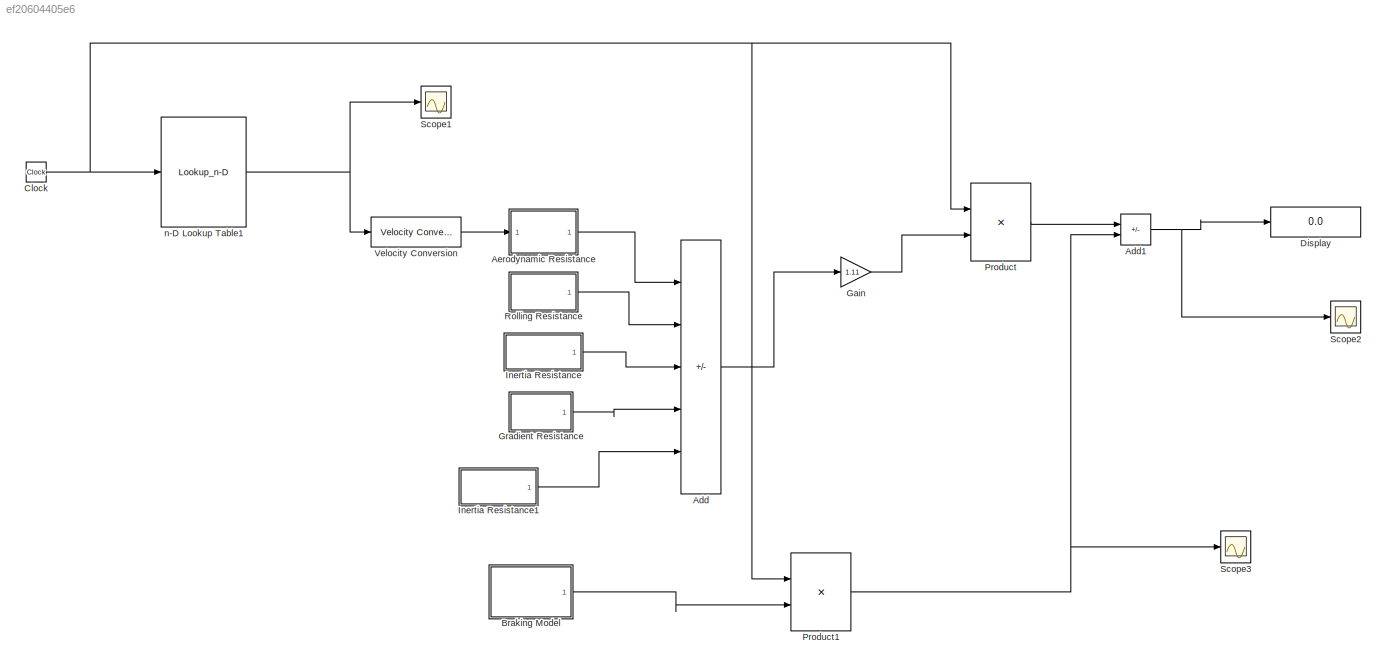
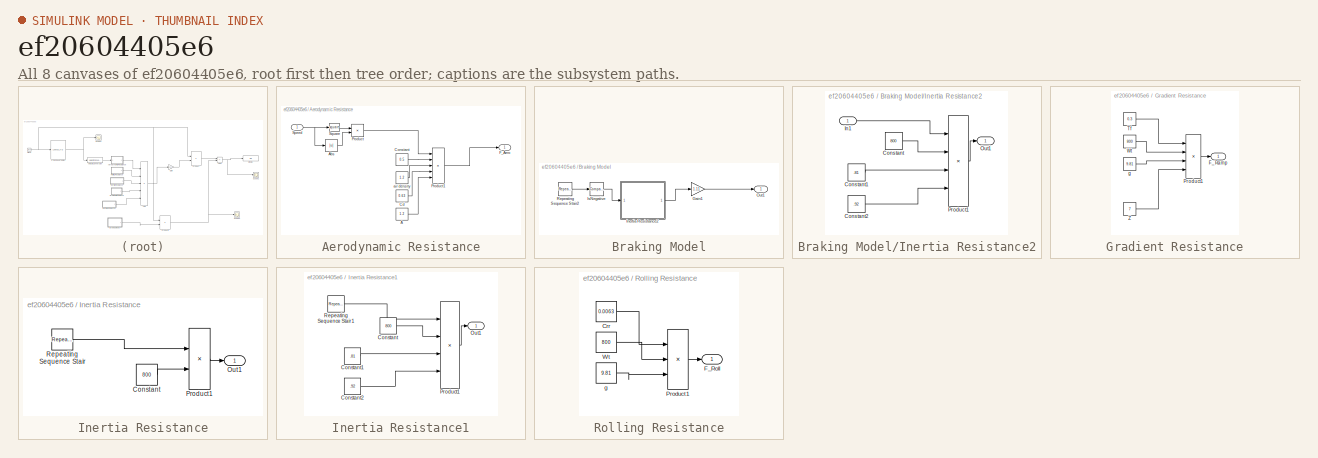
[diagram: thumbnail index - all 8 canvases of the model, root first then tree order]
MODEL slx_ef20604405e6
KIND model
CONFIG AbsTol = auto
CONFIG EnableMultiTasking = off
CONFIG FixedStep = auto
CONFIG MaxStep = auto
CONFIG MinStep = auto
CONFIG RelTol = 1e-3
CONFIG SampleTimeConstraint = Unconstrained
CONFIG Solver = VariableStepDiscrete
CONFIG SolverName = VariableStepDiscrete
CONFIG StartTime = 0.0
CONFIG StopTime = 1180
WORKSPACE source: mxarray member
WORKSPACE acceleration = [0 1.04 0 -0.83 0 0.69 0.79 0 -0.81 0 0.69 0.51 ... (90 elements, 90x1)]
BLOCK [Sum] Add
  IconShape = rectangular
  Inputs = ++++-
  Ports = [5, 1]
BLOCK [Sum] Add1
  IconShape = rectangular
  Inputs = +-
  Ports = [2, 1]
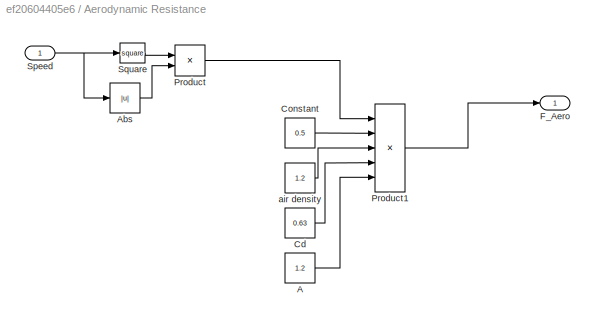
BLOCK [SubSystem] Aerodynamic Resistance
  Ports = [1, 1]
  RequestExecContextInheritance = off
BLOCK [Constant] Aerodynamic Resistance/A
  Value = 1.2
BLOCK [Abs] Aerodynamic Resistance/Abs
  SaturateOnIntegerOverflow = off
BLOCK [Constant] Aerodynamic Resistance/Cd
  Value = 0.63
BLOCK [Constant] Aerodynamic Resistance/Constant
  Value = 0.5
BLOCK [Outport] Aerodynamic Resistance/F_Aero
BLOCK [Product] Aerodynamic Resistance/Product
  Ports = [2, 1]
BLOCK [Product] Aerodynamic Resistance/Product1
  Inputs = 5
  Ports = [5, 1]
BLOCK [Inport] Aerodynamic Resistance/Speed
BLOCK [Math] Aerodynamic Resistance/Square
  Operator = square
  Ports = [1, 1]
BLOCK [Constant] Aerodynamic Resistance/air density
  Value = 1.2
BLOCK [SubSystem] Braking Model
  Ports = [0, 1]
  RequestExecContextInheritance = off
BLOCK [Gain] Braking Model/Gain1
  Gain = 1.11
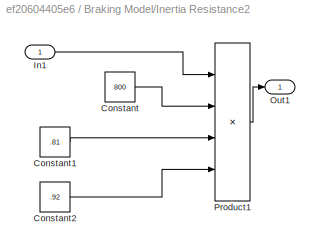
BLOCK [SubSystem] Braking Model/Inertia Resistance2
  Ports = [1, 1]
  RequestExecContextInheritance = off
BLOCK [Constant] Braking Model/Inertia Resistance2/Constant
  Value = 800
BLOCK [Constant] Braking Model/Inertia Resistance2/Constant1
  Value = .81
BLOCK [Constant] Braking Model/Inertia Resistance2/Constant2
  Value = .92
BLOCK [Inport] Braking Model/Inertia Resistance2/In1
BLOCK [Outport] Braking Model/Inertia Resistance2/Out1
BLOCK [Product] Braking Model/Inertia Resistance2/Product1
  Inputs = 4
  Ports = [4, 1]
BLOCK [Reference] Braking Model/IsNegative  REF=simulink/Logic and Bit
Operations/Compare
To Zero
  Ports = [1, 1]
  SourceBlock = simulink/Logic and Bit\nOperations/Compare\nTo Zero
  SourceProductBaseCode = SL
  SourceType = Compare To Zero
BLOCK [Outport] Braking Model/Out1
BLOCK [Reference] Braking Model/Repeating Sequence Stair2  REF=simulink/Sources/Repeating
Sequence
Stair
  Ports = [0, 1]
  SourceBlock = simulink/Sources/Repeating\nSequence\nStair
  SourceProductBaseCode = SL
  SourceType = Repeating Sequence Stair
BLOCK [Clock] Clock
BLOCK [Display] Display
  Decimation = 1
  Ports = [1]
BLOCK [Gain] Gain
  Gain = 1.11
BLOCK [SubSystem] Gradient Resistance
  Ports = [0, 1]
  RequestExecContextInheritance = off
BLOCK [Outport] Gradient Resistance/F_Ramp
BLOCK [Product] Gradient Resistance/Product1
  Inputs = 4
  Ports = [4, 1]
BLOCK [Constant] Gradient Resistance/Tf
  SampleTime = -1
  Value = 0.3
  VectorParams1D = off
BLOCK [Constant] Gradient Resistance/Wt
  SampleTime = -1
  Value = 800
  VectorParams1D = off
BLOCK [Constant] Gradient Resistance/Z
  SampleTime = -1
  Value = 7
  VectorParams1D = off
BLOCK [Constant] Gradient Resistance/g
  SampleTime = -1
  Value = 9.81
  VectorParams1D = off
BLOCK [SubSystem] Inertia Resistance
  Ports = [0, 1]
  RequestExecContextInheritance = off
BLOCK [Constant] Inertia Resistance/Constant
  Value = 800
BLOCK [Outport] Inertia Resistance/Out1
BLOCK [Product] Inertia Resistance/Product1
  Ports = [2, 1]
BLOCK [Reference] Inertia Resistance/Repeating Sequence Stair  REF=simulink/Sources/Repeating
Sequence
Stair
  Ports = [0, 1]
  SourceBlock = simulink/Sources/Repeating\nSequence\nStair
  SourceProductBaseCode = SL
  SourceType = Repeating Sequence Stair
BLOCK [SubSystem] Inertia Resistance1
  Ports = [0, 1]
  RequestExecContextInheritance = off
BLOCK [Constant] Inertia Resistance1/Constant
  Value = 800
BLOCK [Constant] Inertia Resistance1/Constant1
  Value = .81
BLOCK [Constant] Inertia Resistance1/Constant2
  Value = .92
BLOCK [Outport] Inertia Resistance1/Out1
BLOCK [Product] Inertia Resistance1/Product1
  Inputs = 4
  Ports = [4, 1]
BLOCK [Reference] Inertia Resistance1/Repeating Sequence Stair1  REF=simulink/Sources/Repeating
Sequence
Stair
  Ports = [0, 1]
  SourceBlock = simulink/Sources/Repeating\nSequence\nStair
  SourceProductBaseCode = SL
  SourceType = Repeating Sequence Stair
BLOCK [Product] Product
  Ports = [2, 1]
BLOCK [Product] Product1
  Ports = [2, 1]
BLOCK [SubSystem] Rolling Resistance
  Ports = [0, 1]
  RequestExecContextInheritance = off
BLOCK [Constant] Rolling Resistance/Crr
  Value = 0.0063
BLOCK [Outport] Rolling Resistance/F_Roll
BLOCK [Product] Rolling Resistance/Product1
  Inputs = 3
  Ports = [3, 1]
BLOCK [Constant] Rolling Resistance/Wt
  Value = 800
BLOCK [Constant] Rolling Resistance/g
  Value = 9.81
BLOCK [Scope] Scope1
  Floating = off
  NumInputPorts = 1
  Ports = [1]
  ScopeSpecificationString = Simulink.scopes.TimeScopeBlockCfg('CurrentConfiguration', extmgr.ConfigurationSet(extmgr.Configuration('Core','General UI',true),extmgr.Configuration('Core','Source UI',true),extmgr.Configuration('Sources','WiredSimulink',true,'DataLoggingVariableName','ScopeData1'),extmgr.Configuration('Visuals','Time Domain',true,'SerializedDisplays',{struct('MinYLimReal','-45.9375','MaxYLimReal','0.9375','YLabe...<+1403ch>
BLOCK [Scope] Scope2
  Floating = off
  NumInputPorts = 1
  Ports = [1]
  ScopeSpecificationString = Simulink.scopes.TimeScopeBlockCfg('CurrentConfiguration', extmgr.ConfigurationSet(extmgr.Configuration('Core','General UI',true),extmgr.Configuration('Core','Source UI',true),extmgr.Configuration('Sources','WiredSimulink',true),extmgr.Configuration('Visuals','Time Domain',true,'SerializedDisplays',{struct('MinYLimReal','-4731141.12374','MaxYLimReal','42580270.11363','YLabelReal','','MinYLimMag',' ...<+1424ch>
BLOCK [Scope] Scope3
  Floating = off
  NumInputPorts = 1
  Ports = [1]
  ScopeSpecificationString = Simulink.scopes.TimeScopeBlockCfg('CurrentConfiguration', extmgr.ConfigurationSet(extmgr.Configuration('Core','General UI',true),extmgr.Configuration('Core','Source UI',true),extmgr.Configuration('Sources','WiredSimulink',true,'DataLoggingVariableName','ScopeData1'),extmgr.Configuration('Visuals','Time Domain',true,'SerializedDisplays',{struct('MinYLimReal','-97606.296','MaxYLimReal','878456.664',...<+1488ch>
BLOCK [Reference] Velocity Conversion  REF=aerolibconvert2/Velocity Conversion
  Ports = [1, 1]
  SourceBlock = aerolibconvert2/Velocity Conversion
  SourceProductBaseCode = AE
  SourceType = Velocity Conversion
BLOCK [Lookup_n-D] n-D Lookup Table1
  BreakpointsForDimension1 = Time
  BreakpointsForDimension2 = acceleration
  BreakpointsForDimension3 = duration
  InternalRulePriority = Speed
  NumberOfTableDimensions = 1
  Ports = [1, 1]
  RndMeth = Simplest
  Table = avgvelocity
NET Add1:1 -> Display:1, Scope2:1
LINE Add:1 -> Gain:1
LINE Aerodynamic Resistance/A:1 -> Aerodynamic Resistance/Product1:5
LINE Aerodynamic Resistance/Abs:1 -> Aerodynamic Resistance/Product:2
LINE Aerodynamic Resistance/Cd:1 -> Aerodynamic Resistance/Product1:4
LINE Aerodynamic Resistance/Constant:1 -> Aerodynamic Resistance/Product1:2
LINE Aerodynamic Resistance/Product1:1 -> Aerodynamic Resistance/F_Aero:1
LINE Aerodynamic Resistance/Product:1 -> Aerodynamic Resistance/Product1:1
NET Aerodynamic Resistance/Speed:1 -> Aerodynamic Resistance/Abs:1, Aerodynamic Resistance/Square:1
LINE Aerodynamic Resistance/Square:1 -> Aerodynamic Resistance/Product:1
LINE Aerodynamic Resistance/air density:1 -> Aerodynamic Resistance/Product1:3
LINE Aerodynamic Resistance:1 -> Add:1
LINE Braking Model/Gain1:1 -> Braking Model/Out1:1
LINE Braking Model/Inertia Resistance2/Constant1:1 -> Braking Model/Inertia Resistance2/Product1:3
LINE Braking Model/Inertia Resistance2/Constant2:1 -> Braking Model/Inertia Resistance2/Product1:4
LINE Braking Model/Inertia Resistance2/Constant:1 -> Braking Model/Inertia Resistance2/Product1:2
LINE Braking Model/Inertia Resistance2/In1:1 -> Braking Model/Inertia Resistance2/Product1:1
LINE Braking Model/Inertia Resistance2/Product1:1 -> Braking Model/Inertia Resistance2/Out1:1
LINE Braking Model/Inertia Resistance2:1 -> Braking Model/Gain1:1
LINE Braking Model/IsNegative:1 -> Braking Model/Inertia Resistance2:1
LINE Braking Model/Repeating Sequence Stair2:1 -> Braking Model/IsNegative:1
LINE Braking Model:1 -> Product1:2
NET Clock:1 -> Product1:1, Product:1, n-D Lookup Table1:1
LINE Gain:1 -> Product:2
LINE Gradient Resistance/Product1:1 -> Gradient Resistance/F_Ramp:1
LINE Gradient Resistance/Tf:1 -> Gradient Resistance/Product1:1
LINE Gradient Resistance/Wt:1 -> Gradient Resistance/Product1:2
LINE Gradient Resistance/Z:1 -> Gradient Resistance/Product1:4
LINE Gradient Resistance/g:1 -> Gradient Resistance/Product1:3
LINE Gradient Resistance:1 -> Add:4
LINE Inertia Resistance/Constant:1 -> Inertia Resistance/Product1:2
LINE Inertia Resistance/Product1:1 -> Inertia Resistance/Out1:1
LINE Inertia Resistance/Repeating Sequence Stair:1 -> Inertia Resistance/Product1:1
LINE Inertia Resistance1/Constant1:1 -> Inertia Resistance1/Product1:3
LINE Inertia Resistance1/Constant2:1 -> Inertia Resistance1/Product1:4
LINE Inertia Resistance1/Constant:1 -> Inertia Resistance1/Product1:2
LINE Inertia Resistance1/Product1:1 -> Inertia Resistance1/Out1:1
LINE Inertia Resistance1/Repeating Sequence Stair1:1 -> Inertia Resistance1/Product1:1
LINE Inertia Resistance1:1 -> Add:5
LINE Inertia Resistance:1 -> Add:3
NET Product1:1 -> Add1:2, Scope3:1
LINE Product:1 -> Add1:1
LINE Rolling Resistance/Crr:1 -> Rolling Resistance/Product1:1
LINE Rolling Resistance/Product1:1 -> Rolling Resistance/F_Roll:1
LINE Rolling Resistance/Wt:1 -> Rolling Resistance/Product1:2
LINE Rolling Resistance/g:1 -> Rolling Resistance/Product1:3
LINE Rolling Resistance:1 -> Add:2
LINE Velocity Conversion:1 -> Aerodynamic Resistance:1
NET n-D Lookup Table1:1 -> Scope1:1, Velocity Conversion:1
note: NET lines group one-source signal fan-out (src -> all destinations, sorted); 1:1 wires keep LINE
